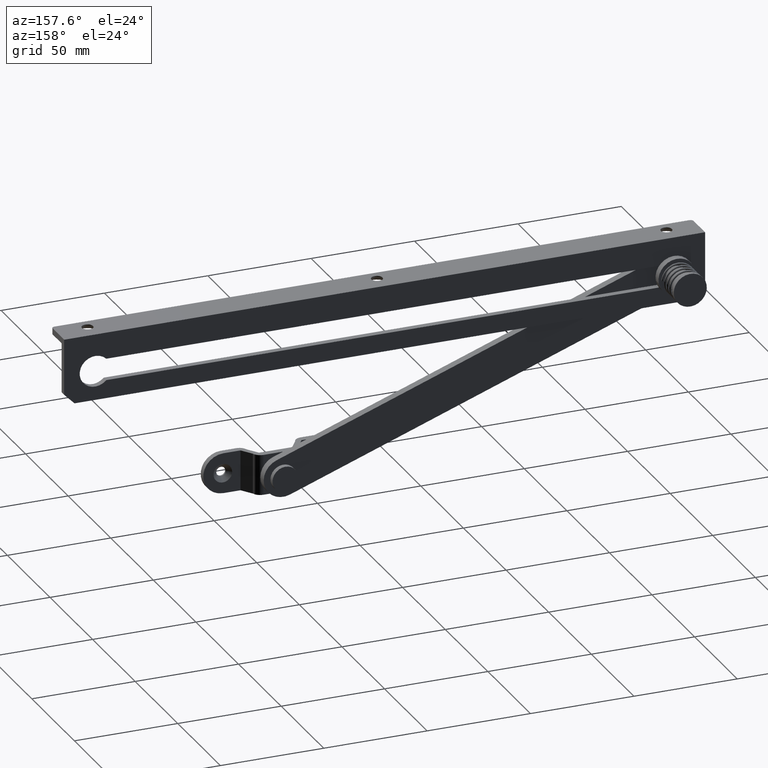
[diagram: clean part render]
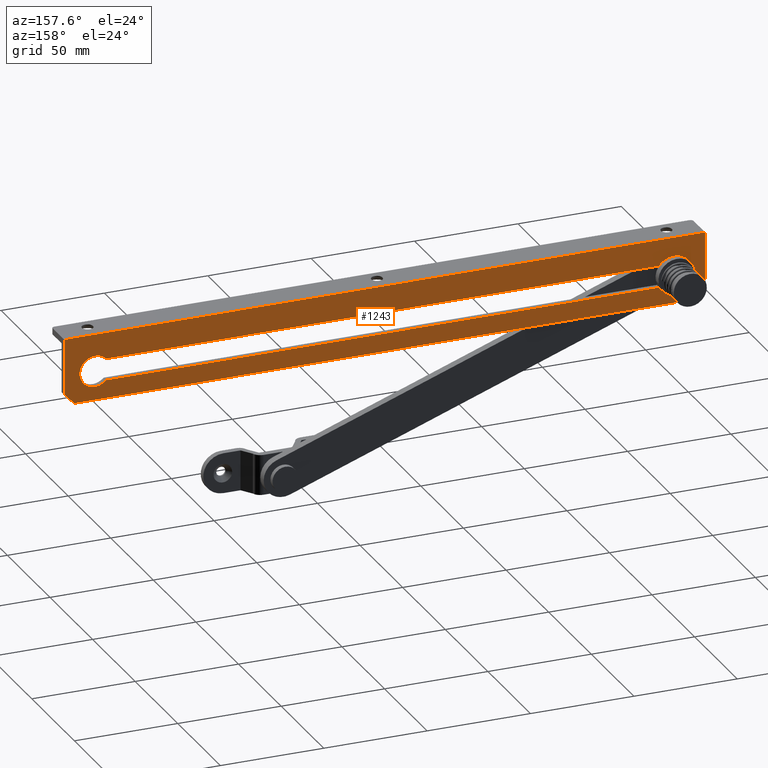
[diagram: same view with one face highlighted and labeled with its STEP entity id]
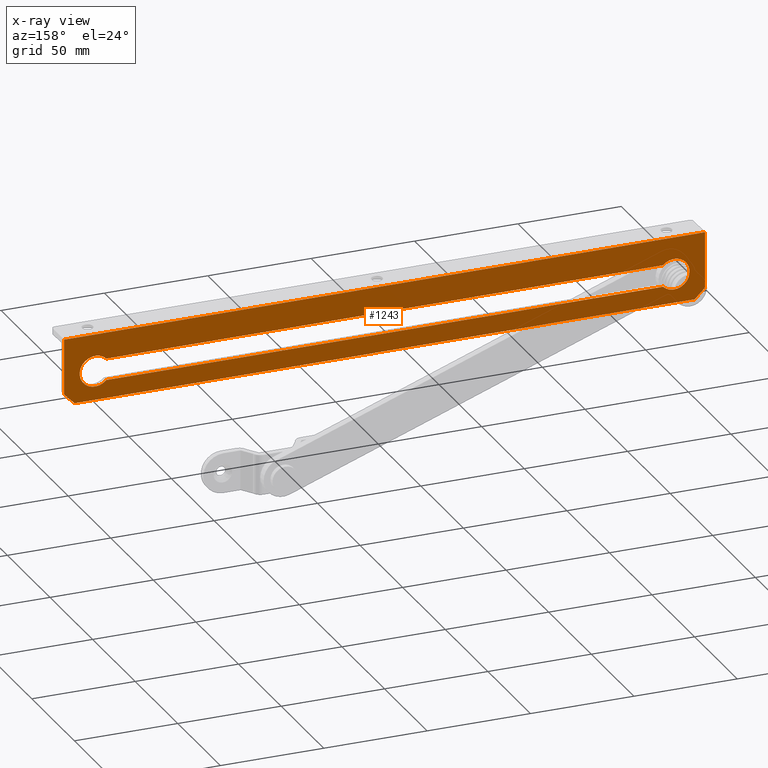
[diagram: x-ray of the same camera — body ghosted, the highlighted face saturated]
A machine part, auxiliary view. The second image highlights one B-rep face of the part: STEP entity #1243.
The next image is the same camera in x-ray: the body ghosted, the highlighted face saturated — about 0% of this face is hidden behind the body in this view.
In plain terms, the highlighted planar face has unit normal (-0, 1, -0).
Its self-contained STEP definition (entity closure, byte-faithful):
#77=LINE('',#1933,#155);
#82=LINE('',#1947,#160);
#96=LINE('',#1987,#174);
#98=LINE('',#1991,#176);
#101=LINE('',#1997,#179);
#104=LINE('',#2003,#182);
#108=LINE('',#2010,#186);
#110=LINE('',#2013,#188);
#155=VECTOR('',#1519,269.287857357186);
#160=VECTOR('',#1532,269.287857357186);
#174=VECTOR('',#1570,27.);
#176=VECTOR('',#1574,7.07106781186548);
#179=VECTOR('',#1579,300.);
#182=VECTOR('',#1584,7.07106781186548);
#186=VECTOR('',#1590,27.);
#188=VECTOR('',#1594,310.);
#244=PLANE('',#1353);
#322=FACE_BOUND('',#479,.T.);
#381=FACE_OUTER_BOUND('',#478,.T.);
#478=EDGE_LOOP('',(#1007,#1008,#1009,#1010,#1011,#1012));
#479=EDGE_LOOP('',(#1013,#1014,#1015,#1016));
#588=CIRCLE('',#1332,7.5);
#590=CIRCLE('',#1336,7.5);
#659=VERTEX_POINT('',#1931);
#660=VERTEX_POINT('',#1932);
#663=VERTEX_POINT('',#1940);
#665=VERTEX_POINT('',#1946);
#678=VERTEX_POINT('',#1984);
#679=VERTEX_POINT('',#1986);
#680=VERTEX_POINT('',#1990);
#682=VERTEX_POINT('',#1996);
#684=VERTEX_POINT('',#2002);
#686=VERTEX_POINT('',#2008);
#774=EDGE_CURVE('',#659,#660,#77,.T.);
#778=EDGE_CURVE('',#660,#663,#588,.T.);
#781=EDGE_CURVE('',#663,#665,#82,.T.);
#784=EDGE_CURVE('',#665,#659,#590,.T.);
#801=EDGE_CURVE('',#678,#679,#96,.T.);
#803=EDGE_CURVE('',#680,#678,#98,.T.);
#806=EDGE_CURVE('',#682,#680,#101,.T.);
#809=EDGE_CURVE('',#684,#682,#104,.T.);
#813=EDGE_CURVE('',#686,#684,#108,.T.);
#815=EDGE_CURVE('',#679,#686,#110,.T.);
#1007=ORIENTED_EDGE('',*,*,#815,.F.);
#1008=ORIENTED_EDGE('',*,*,#801,.F.);
#1009=ORIENTED_EDGE('',*,*,#803,.F.);
#1010=ORIENTED_EDGE('',*,*,#806,.F.);
#1011=ORIENTED_EDGE('',*,*,#809,.F.);
#1012=ORIENTED_EDGE('',*,*,#813,.F.);
#1013=ORIENTED_EDGE('',*,*,#781,.T.);
#1014=ORIENTED_EDGE('',*,*,#784,.T.);
#1015=ORIENTED_EDGE('',*,*,#774,.T.);
#1016=ORIENTED_EDGE('',*,*,#778,.T.);
#1243=ADVANCED_FACE('',(#381,#322),#244,.T.);
#1332=AXIS2_PLACEMENT_3D('',#1941,#1525,#1526);
#1336=AXIS2_PLACEMENT_3D('',#1952,#1537,#1538);
#1353=AXIS2_PLACEMENT_3D('',#2015,#1597,#1598);
#1519=DIRECTION('',(1.,0.,0.));
#1525=DIRECTION('center_axis',(0.,1.,0.));
#1526=DIRECTION('ref_axis',(1.,0.,0.));
#1532=DIRECTION('',(-1.,0.,0.));
#1537=DIRECTION('center_axis',(0.,1.,0.));
#1538=DIRECTION('ref_axis',(1.,0.,0.));
#1570=DIRECTION('',(-7.17109759178041E-17,0.,-1.));
#1574=DIRECTION('',(0.707106781186548,0.,-0.707106781186547));
#1579=DIRECTION('',(1.,0.,-1.33226762955019E-16));
#1584=DIRECTION('',(0.707106781186548,0.,0.707106781186548));
#1590=DIRECTION('',(0.,0.,1.));
#1594=DIRECTION('',(-1.,0.,0.));
#1597=DIRECTION('center_axis',(0.,-1.,0.));
#1598=DIRECTION('ref_axis',(0.,0.,-1.));
#1931=CARTESIAN_POINT('',(-289.643928678593,0.,23.25));
#1932=CARTESIAN_POINT('',(-20.3560713214071,0.,23.25));
#1933=CARTESIAN_POINT('',(-87.6780356607036,0.,23.25));
#1940=CARTESIAN_POINT('',(-20.3560713214071,0.,12.75));
#1941=CARTESIAN_POINT('Origin',(-15.,0.,18.));
#1946=CARTESIAN_POINT('',(-289.643928678593,0.,12.75));
#1947=CARTESIAN_POINT('',(-222.321964339296,0.,12.75));
#1952=CARTESIAN_POINT('Origin',(-295.,0.,18.));
#1984=CARTESIAN_POINT('',(1.93619634978071E-15,0.,27.));
#1986=CARTESIAN_POINT('',(0.,0.,0.));
#1987=CARTESIAN_POINT('',(1.93619634978071E-15,0.,27.));
#1990=CARTESIAN_POINT('',(-5.,0.,32.));
#1991=CARTESIAN_POINT('',(-5.,0.,32.));
#1996=CARTESIAN_POINT('',(-305.,0.,32.));
#1997=CARTESIAN_POINT('',(-305.,0.,32.));
#2002=CARTESIAN_POINT('',(-310.,0.,27.));
#2003=CARTESIAN_POINT('',(-310.,0.,27.));
#2008=CARTESIAN_POINT('',(-310.,0.,0.));
#2010=CARTESIAN_POINT('',(-310.,0.,0.));
#2013=CARTESIAN_POINT('',(0.,0.,0.));
#2015=CARTESIAN_POINT('Origin',(-155.,0.,15.8465201266636));